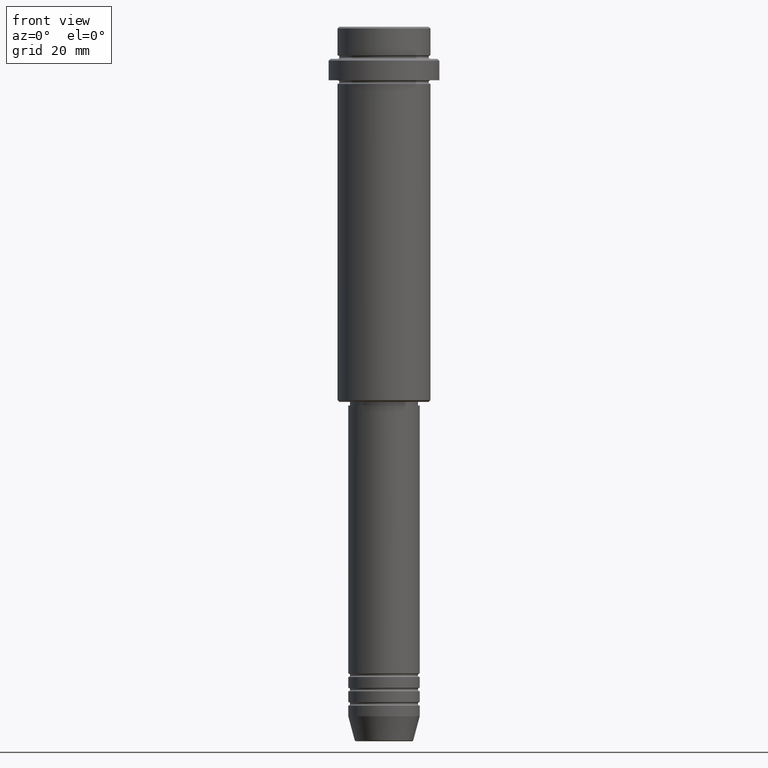
[diagram: clean part render]
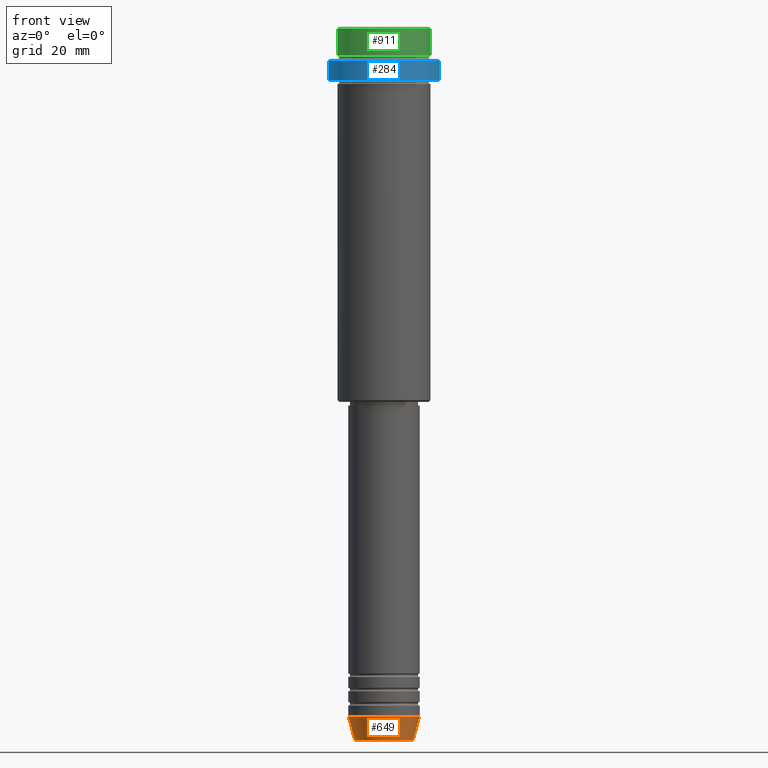
[diagram: same view with three faces highlighted in distinct colors, each labeled with its STEP entity id]
A machine part, front view with three faces highlighted in distinct colors.
Their STEP definitions:

[orange] entity #649 — the highlighted conical surface has half-angle 15 deg.
#10 = VERTEX_POINT ( 'NONE', #456 ) ;
#14 = FACE_OUTER_BOUND ( 'NONE', #362, .T. ) ;
#30 = LINE ( 'NONE', #465, #752 ) ;
#121 = DIRECTION ( 'NONE',  ( -0.000000000000000000, -0.000000000000000000, 1.000000000000000000 ) ) ;
#128 = CARTESIAN_POINT ( 'NONE',  ( 0.000000000000000000, 0.000000000000000000, -193.0000000000000000 ) ) ;
#175 = VECTOR ( 'NONE', #353, 1000.000000000000114 ) ;
#215 = DIRECTION ( 'NONE',  ( 1.000000000000000000, 0.000000000000000000, 0.000000000000000000 ) ) ;
#244 = AXIS2_PLACEMENT_3D ( 'NONE', #128, #459, #1103 ) ;
#262 = CARTESIAN_POINT ( 'NONE',  ( -10.00000000000000000, 1.224646799147353256E-15, -193.0000000000000000 ) ) ;
#290 = CONICAL_SURFACE ( 'NONE', #867, 10.00000000000000000, 0.2617993877991502405 ) ;
#303 = EDGE_CURVE ( 'NONE', #1029, #10, #30, .T. ) ;
#347 = VERTEX_POINT ( 'NONE', #1375 ) ;
#353 = DIRECTION ( 'NONE',  ( -0.2588190451025214611, 3.169619151431774186E-17, 0.9659258262890679791 ) ) ;
#362 = EDGE_LOOP ( 'NONE', ( #1371, #1180, #908, #1232 ) ) ;
#450 = CARTESIAN_POINT ( 'NONE',  ( 0.000000000000000000, 0.000000000000000000, -193.0000000000000000 ) ) ;
#456 = CARTESIAN_POINT ( 'NONE',  ( 10.00000000000000000, 0.000000000000000000, -193.0000000000000000 ) ) ;
#457 = DIRECTION ( 'NONE',  ( -0.000000000000000000, -0.000000000000000000, 1.000000000000000000 ) ) ;
#459 = DIRECTION ( 'NONE',  ( -0.000000000000000000, -0.000000000000000000, 1.000000000000000000 ) ) ;
#465 = CARTESIAN_POINT ( 'NONE',  ( 10.00000000000000000, 0.000000000000000000, -193.0000000000000000 ) ) ;
#590 = AXIS2_PLACEMENT_3D ( 'NONE', #1197, #457, #670 ) ;
#649 = ADVANCED_FACE ( 'NONE', ( #14 ), #290, .T. ) ;
#670 = DIRECTION ( 'NONE',  ( 1.000000000000000000, 0.000000000000000000, 0.000000000000000000 ) ) ;
#727 = EDGE_CURVE ( 'NONE', #1025, #10, #966, .T. ) ;
#752 = VECTOR ( 'NONE', #1340, 1000.000000000000114 ) ;
#780 = EDGE_CURVE ( 'NONE', #347, #1025, #1363, .T. ) ;
#867 = AXIS2_PLACEMENT_3D ( 'NONE', #450, #121, #215 ) ;
#908 = ORIENTED_EDGE ( 'NONE', *, *, #303, .T. ) ;
#966 = CIRCLE ( 'NONE', #244, 10.00000000000000000 ) ;
#1025 = VERTEX_POINT ( 'NONE', #1399 ) ;
#1029 = VERTEX_POINT ( 'NONE', #1380 ) ;
#1103 = DIRECTION ( 'NONE',  ( 1.000000000000000000, 0.000000000000000000, 0.000000000000000000 ) ) ;
#1109 = EDGE_CURVE ( 'NONE', #347, #1029, #1208, .T. ) ;
#1180 = ORIENTED_EDGE ( 'NONE', *, *, #1109, .T. ) ;
#1197 = CARTESIAN_POINT ( 'NONE',  ( 0.000000000000000000, 0.000000000000000000, -199.6294095225512706 ) ) ;
#1208 = CIRCLE ( 'NONE', #590, 8.223655072137189492 ) ;
#1232 = ORIENTED_EDGE ( 'NONE', *, *, #727, .F. ) ;
#1340 = DIRECTION ( 'NONE',  ( 0.2588190451025214611, 0.000000000000000000, 0.9659258262890679791 ) ) ;
#1363 = LINE ( 'NONE', #262, #175 ) ;
#1371 = ORIENTED_EDGE ( 'NONE', *, *, #780, .F. ) ;
#1375 = CARTESIAN_POINT ( 'NONE',  ( -8.223655072137189492, 1.115877042642911856E-15, -199.6294095225512706 ) ) ;
#1380 = CARTESIAN_POINT ( 'NONE',  ( 8.223655072137189492, 0.000000000000000000, -199.6294095225512706 ) ) ;
#1399 = CARTESIAN_POINT ( 'NONE',  ( -10.00000000000000000, 1.224646799147353256E-15, -193.0000000000000000 ) ) ;

[blue] entity #284 — the highlighted cylindrical surface (partial cylindrical patch) has radius 15.5 mm, axis along (-0, -0, 1).
#34 = VERTEX_POINT ( 'NONE', #291 ) ;
#43 = DIRECTION ( 'NONE',  ( -0.000000000000000000, -0.000000000000000000, 1.000000000000000000 ) ) ;
#46 = VERTEX_POINT ( 'NONE', #511 ) ;
#100 = LINE ( 'NONE', #667, #312 ) ;
#101 = DIRECTION ( 'NONE',  ( -0.000000000000000000, -0.000000000000000000, 1.000000000000000000 ) ) ;
#143 = EDGE_LOOP ( 'NONE', ( #531, #712, #900, #1044 ) ) ;
#151 = CARTESIAN_POINT ( 'NONE',  ( -15.50000000000000000, 1.898202538678397557E-15, -9.499999999999984013 ) ) ;
#211 = CARTESIAN_POINT ( 'NONE',  ( 15.50000000000000000, 0.000000000000000000, 0.000000000000000000 ) ) ;
#284 = ADVANCED_FACE ( 'NONE', ( #689 ), #1122, .T. ) ;
#291 = CARTESIAN_POINT ( 'NONE',  ( 15.50000000000000000, 0.000000000000000000, -9.499999999999984013 ) ) ;
#312 = VECTOR ( 'NONE', #1213, 1000.000000000000000 ) ;
#319 = EDGE_CURVE ( 'NONE', #675, #34, #1305, .T. ) ;
#337 = CARTESIAN_POINT ( 'NONE',  ( 15.50000000000000000, 0.000000000000000000, -15.00000000000000000 ) ) ;
#345 = VERTEX_POINT ( 'NONE', #151 ) ;
#462 = CARTESIAN_POINT ( 'NONE',  ( 0.000000000000000000, 0.000000000000000000, -15.00000000000000000 ) ) ;
#464 = DIRECTION ( 'NONE',  ( 1.000000000000000000, 0.000000000000000000, 0.000000000000000000 ) ) ;
#511 = CARTESIAN_POINT ( 'NONE',  ( -15.50000000000000000, 1.898202538678397557E-15, -15.00000000000000000 ) ) ;
#523 = AXIS2_PLACEMENT_3D ( 'NONE', #462, #43, #1224 ) ;
#531 = ORIENTED_EDGE ( 'NONE', *, *, #635, .F. ) ;
#588 = VECTOR ( 'NONE', #101, 1000.000000000000000 ) ;
#635 = EDGE_CURVE ( 'NONE', #46, #345, #100, .T. ) ;
#637 = CARTESIAN_POINT ( 'NONE',  ( 0.000000000000000000, 0.000000000000000000, 0.000000000000000000 ) ) ;
#667 = CARTESIAN_POINT ( 'NONE',  ( -15.50000000000000000, 1.898202538678397557E-15, 0.000000000000000000 ) ) ;
#675 = VERTEX_POINT ( 'NONE', #337 ) ;
#689 = FACE_OUTER_BOUND ( 'NONE', #143, .T. ) ;
#699 = DIRECTION ( 'NONE',  ( 0.000000000000000000, 0.000000000000000000, -1.000000000000000000 ) ) ;
#712 = ORIENTED_EDGE ( 'NONE', *, *, #1335, .T. ) ;
#875 = DIRECTION ( 'NONE',  ( -0.000000000000000000, -0.000000000000000000, 1.000000000000000000 ) ) ;
#897 = EDGE_CURVE ( 'NONE', #34, #345, #1077, .T. ) ;
#900 = ORIENTED_EDGE ( 'NONE', *, *, #319, .T. ) ;
#910 = DIRECTION ( 'NONE',  ( 1.000000000000000000, 0.000000000000000000, 0.000000000000000000 ) ) ;
#939 = AXIS2_PLACEMENT_3D ( 'NONE', #637, #875, #910 ) ;
#944 = AXIS2_PLACEMENT_3D ( 'NONE', #1260, #699, #464 ) ;
#1044 = ORIENTED_EDGE ( 'NONE', *, *, #897, .T. ) ;
#1077 = CIRCLE ( 'NONE', #944, 15.50000000000000000 ) ;
#1122 = CYLINDRICAL_SURFACE ( 'NONE', #939, 15.50000000000000000 ) ;
#1145 = CIRCLE ( 'NONE', #523, 15.50000000000000000 ) ;
#1213 = DIRECTION ( 'NONE',  ( -0.000000000000000000, -0.000000000000000000, 1.000000000000000000 ) ) ;
#1224 = DIRECTION ( 'NONE',  ( 1.000000000000000000, 0.000000000000000000, 0.000000000000000000 ) ) ;
#1260 = CARTESIAN_POINT ( 'NONE',  ( 0.000000000000000000, 0.000000000000000000, -9.499999999999984013 ) ) ;
#1305 = LINE ( 'NONE', #211, #588 ) ;
#1335 = EDGE_CURVE ( 'NONE', #46, #675, #1145, .T. ) ;

[green] entity #911 — the highlighted cylindrical surface (partial cylindrical patch) has radius 13 mm, axis along (-0, -0, 1).
#16 = AXIS2_PLACEMENT_3D ( 'NONE', #230, #1008, #547 ) ;
#45 = ORIENTED_EDGE ( 'NONE', *, *, #709, .T. ) ;
#49 = VERTEX_POINT ( 'NONE', #278 ) ;
#73 = LINE ( 'NONE', #863, #869 ) ;
#140 = CARTESIAN_POINT ( 'NONE',  ( 0.000000000000000000, 0.000000000000000000, -7.999999999999998224 ) ) ;
#230 = CARTESIAN_POINT ( 'NONE',  ( 0.000000000000000000, 0.000000000000000000, -0.5000000000000037748 ) ) ;
#278 = CARTESIAN_POINT ( 'NONE',  ( -12.99999999999999822, 1.592040838891558898E-15, -0.5000000000000037748 ) ) ;
#297 = EDGE_CURVE ( 'NONE', #305, #782, #912, .T. ) ;
#298 = CARTESIAN_POINT ( 'NONE',  ( 12.99999999999999822, 0.000000000000000000, -0.5000000000000037748 ) ) ;
#305 = VERTEX_POINT ( 'NONE', #415 ) ;
#367 = ORIENTED_EDGE ( 'NONE', *, *, #1000, .F. ) ;
#369 = CARTESIAN_POINT ( 'NONE',  ( 0.000000000000000000, 0.000000000000000000, 0.000000000000000000 ) ) ;
#415 = CARTESIAN_POINT ( 'NONE',  ( -12.99999999999999822, 1.592040838891558898E-15, -7.999999999999998224 ) ) ;
#432 = DIRECTION ( 'NONE',  ( 1.000000000000000000, 0.000000000000000000, 0.000000000000000000 ) ) ;
#448 = AXIS2_PLACEMENT_3D ( 'NONE', #140, #1015, #432 ) ;
#455 = ORIENTED_EDGE ( 'NONE', *, *, #297, .T. ) ;
#484 = VERTEX_POINT ( 'NONE', #298 ) ;
#547 = DIRECTION ( 'NONE',  ( 1.000000000000000000, 0.000000000000000000, 0.000000000000000000 ) ) ;
#624 = DIRECTION ( 'NONE',  ( 1.000000000000000000, 0.000000000000000000, 0.000000000000000000 ) ) ;
#636 = CIRCLE ( 'NONE', #16, 12.99999999999999822 ) ;
#709 = EDGE_CURVE ( 'NONE', #484, #49, #636, .T. ) ;
#764 = ORIENTED_EDGE ( 'NONE', *, *, #1280, .T. ) ;
#782 = VERTEX_POINT ( 'NONE', #909 ) ;
#863 = CARTESIAN_POINT ( 'NONE',  ( -12.99999999999999822, 1.592040838891558898E-15, 0.000000000000000000 ) ) ;
#869 = VECTOR ( 'NONE', #1298, 1000.000000000000000 ) ;
#909 = CARTESIAN_POINT ( 'NONE',  ( 12.99999999999999822, 0.000000000000000000, -7.999999999999998224 ) ) ;
#911 = ADVANCED_FACE ( 'NONE', ( #1357 ), #1268, .T. ) ;
#912 = CIRCLE ( 'NONE', #448, 12.99999999999999822 ) ;
#923 = LINE ( 'NONE', #1151, #1324 ) ;
#1000 = EDGE_CURVE ( 'NONE', #305, #49, #73, .T. ) ;
#1008 = DIRECTION ( 'NONE',  ( 0.000000000000000000, 0.000000000000000000, -1.000000000000000000 ) ) ;
#1015 = DIRECTION ( 'NONE',  ( -0.000000000000000000, -0.000000000000000000, 1.000000000000000000 ) ) ;
#1045 = DIRECTION ( 'NONE',  ( -0.000000000000000000, -0.000000000000000000, 1.000000000000000000 ) ) ;
#1151 = CARTESIAN_POINT ( 'NONE',  ( 12.99999999999999822, 0.000000000000000000, 0.000000000000000000 ) ) ;
#1167 = AXIS2_PLACEMENT_3D ( 'NONE', #369, #1045, #624 ) ;
#1257 = DIRECTION ( 'NONE',  ( -0.000000000000000000, -0.000000000000000000, 1.000000000000000000 ) ) ;
#1268 = CYLINDRICAL_SURFACE ( 'NONE', #1167, 12.99999999999999822 ) ;
#1280 = EDGE_CURVE ( 'NONE', #782, #484, #923, .T. ) ;
#1298 = DIRECTION ( 'NONE',  ( -0.000000000000000000, -0.000000000000000000, 1.000000000000000000 ) ) ;
#1313 = EDGE_LOOP ( 'NONE', ( #367, #455, #764, #45 ) ) ;
#1324 = VECTOR ( 'NONE', #1257, 1000.000000000000000 ) ;
#1357 = FACE_OUTER_BOUND ( 'NONE', #1313, .T. ) ;